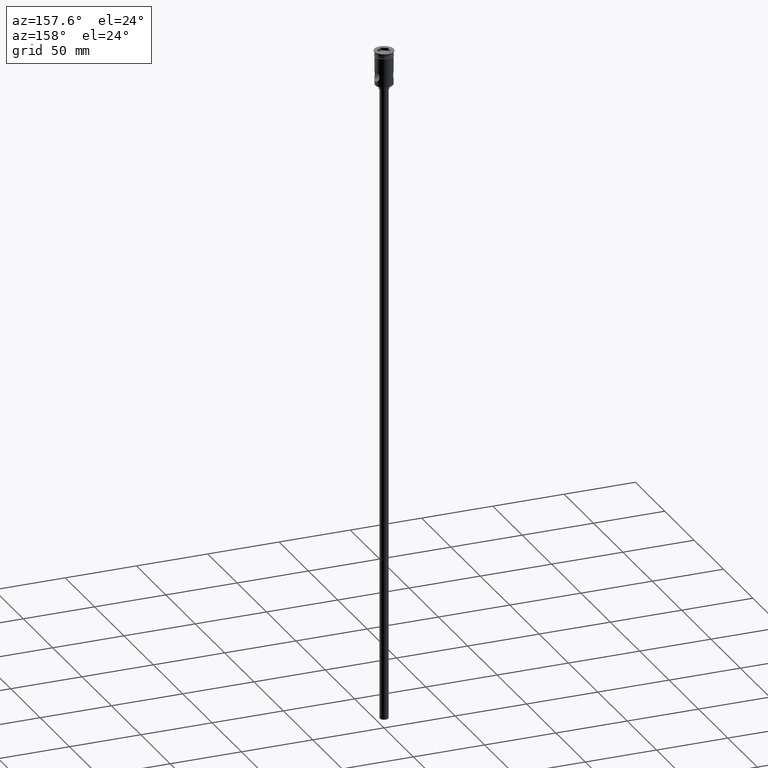
[diagram: clean part render]
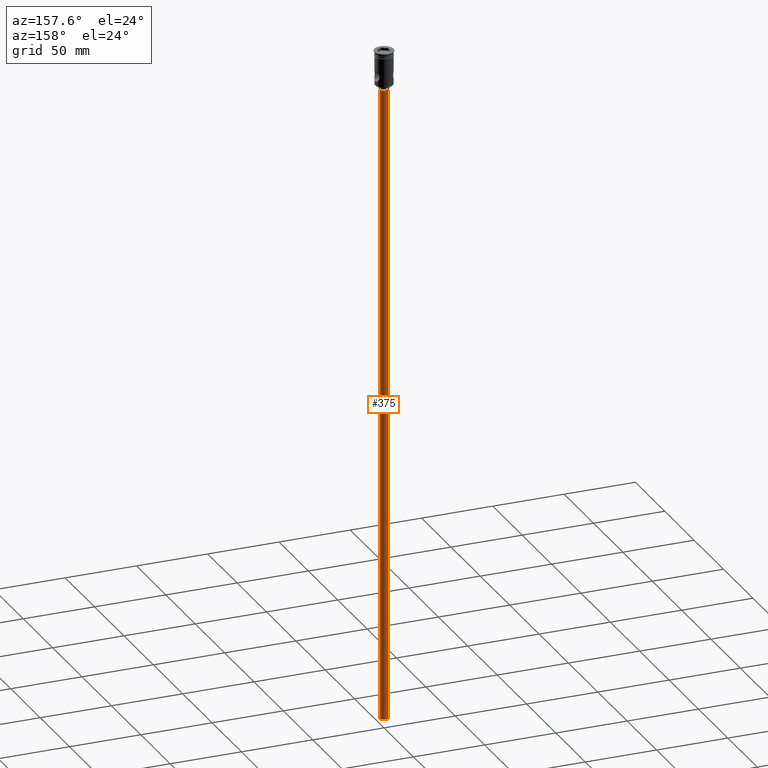
[diagram: same view with one face highlighted and labeled with its STEP entity id]
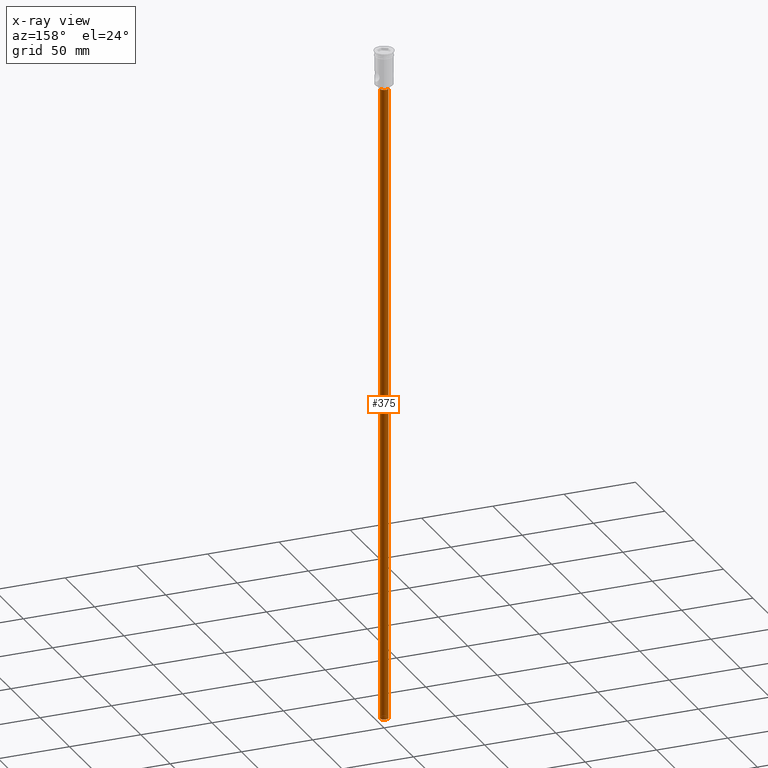
[diagram: x-ray of the same camera — body ghosted, the highlighted face saturated]
A machine part, auxiliary view. The second image highlights one B-rep face of the part: STEP entity #375.
The next image is the same camera in x-ray: the body ghosted, the highlighted face saturated — about 0% of this face is hidden behind the body in this view.
In plain terms, the highlighted cylindrical surface (edge-blend (fillet) strip) has radius 3 mm, axis along (-0, -0, 1).
Its self-contained STEP definition (entity closure, byte-faithful):
#3 = AXIS2_PLACEMENT_3D ( 'NONE', #445, #86, #1461 ) ;
#34 = EDGE_LOOP ( 'NONE', ( #848, #1454, #1395, #1158 ) ) ;
#86 = DIRECTION ( 'NONE',  ( 0.000000000000000000, 0.000000000000000000, -1.000000000000000000 ) ) ;
#136 = CARTESIAN_POINT ( 'NONE',  ( -3.000000000000000444, 3.673940397442060361E-16, -474.0000000000000568 ) ) ;
#196 = FACE_OUTER_BOUND ( 'NONE', #34, .T. ) ;
#233 = DIRECTION ( 'NONE',  ( -0.000000000000000000, -0.000000000000000000, 1.000000000000000000 ) ) ;
#265 = CARTESIAN_POINT ( 'NONE',  ( 0.000000000000000000, 0.000000000000000000, -474.0000000000000568 ) ) ;
#280 = DIRECTION ( 'NONE',  ( -0.000000000000000000, -0.000000000000000000, 1.000000000000000000 ) ) ;
#317 = CARTESIAN_POINT ( 'NONE',  ( 0.000000000000000000, 0.000000000000000000, -474.0000000000000568 ) ) ;
#336 = CIRCLE ( 'NONE', #3, 3.000000000000000444 ) ;
#344 = CYLINDRICAL_SURFACE ( 'NONE', #936, 3.000000000000000444 ) ;
#375 = ADVANCED_FACE ( 'NONE', ( #196 ), #344, .T. ) ;
#399 = EDGE_CURVE ( 'NONE', #611, #1311, #1261, .T. ) ;
#426 = EDGE_CURVE ( 'NONE', #1321, #496, #1453, .T. ) ;
#439 = VECTOR ( 'NONE', #894, 1000.000000000000000 ) ;
#442 = CARTESIAN_POINT ( 'NONE',  ( 3.000000000000000444, 0.000000000000000000, -474.0000000000000568 ) ) ;
#445 = CARTESIAN_POINT ( 'NONE',  ( 0.000000000000000000, 0.000000000000000000, -27.00000000000000000 ) ) ;
#461 = CARTESIAN_POINT ( 'NONE',  ( 3.000000000000000444, 0.000000000000000000, -27.00000000000000000 ) ) ;
#496 = VERTEX_POINT ( 'NONE', #461 ) ;
#611 = VERTEX_POINT ( 'NONE', #136 ) ;
#672 = CARTESIAN_POINT ( 'NONE',  ( 3.000000000000000444, 0.000000000000000000, -474.0000000000000568 ) ) ;
#684 = CARTESIAN_POINT ( 'NONE',  ( -3.000000000000000444, 3.673940397442060361E-16, -27.00000000000000000 ) ) ;
#744 = AXIS2_PLACEMENT_3D ( 'NONE', #317, #1091, #1098 ) ;
#809 = EDGE_CURVE ( 'NONE', #611, #1321, #1189, .T. ) ;
#848 = ORIENTED_EDGE ( 'NONE', *, *, #809, .F. ) ;
#894 = DIRECTION ( 'NONE',  ( -0.000000000000000000, -0.000000000000000000, 1.000000000000000000 ) ) ;
#921 = CARTESIAN_POINT ( 'NONE',  ( -3.000000000000000444, 3.673940397442060361E-16, -474.0000000000000568 ) ) ;
#936 = AXIS2_PLACEMENT_3D ( 'NONE', #265, #233, #1138 ) ;
#1075 = VECTOR ( 'NONE', #280, 1000.000000000000000 ) ;
#1091 = DIRECTION ( 'NONE',  ( 0.000000000000000000, 0.000000000000000000, -1.000000000000000000 ) ) ;
#1098 = DIRECTION ( 'NONE',  ( -1.000000000000000000, 0.000000000000000000, 0.000000000000000000 ) ) ;
#1138 = DIRECTION ( 'NONE',  ( 1.000000000000000000, 0.000000000000000000, 0.000000000000000000 ) ) ;
#1158 = ORIENTED_EDGE ( 'NONE', *, *, #426, .F. ) ;
#1189 = CIRCLE ( 'NONE', #744, 3.000000000000000444 ) ;
#1261 = LINE ( 'NONE', #921, #439 ) ;
#1262 = EDGE_CURVE ( 'NONE', #1311, #496, #336, .T. ) ;
#1311 = VERTEX_POINT ( 'NONE', #684 ) ;
#1321 = VERTEX_POINT ( 'NONE', #672 ) ;
#1395 = ORIENTED_EDGE ( 'NONE', *, *, #1262, .T. ) ;
#1453 = LINE ( 'NONE', #442, #1075 ) ;
#1454 = ORIENTED_EDGE ( 'NONE', *, *, #399, .T. ) ;
#1461 = DIRECTION ( 'NONE',  ( -1.000000000000000000, 0.000000000000000000, 0.000000000000000000 ) ) ;